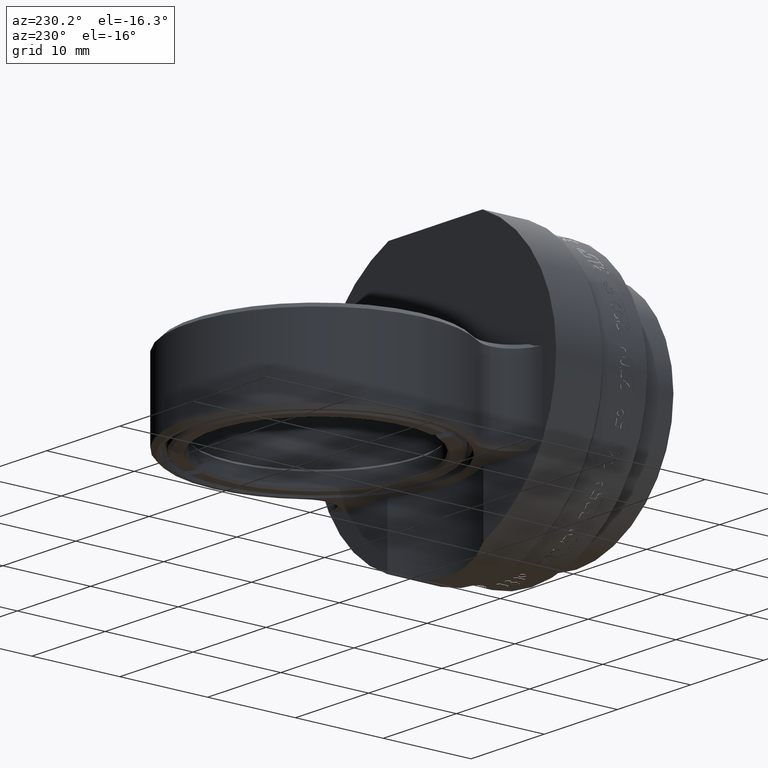
[diagram: clean part render]
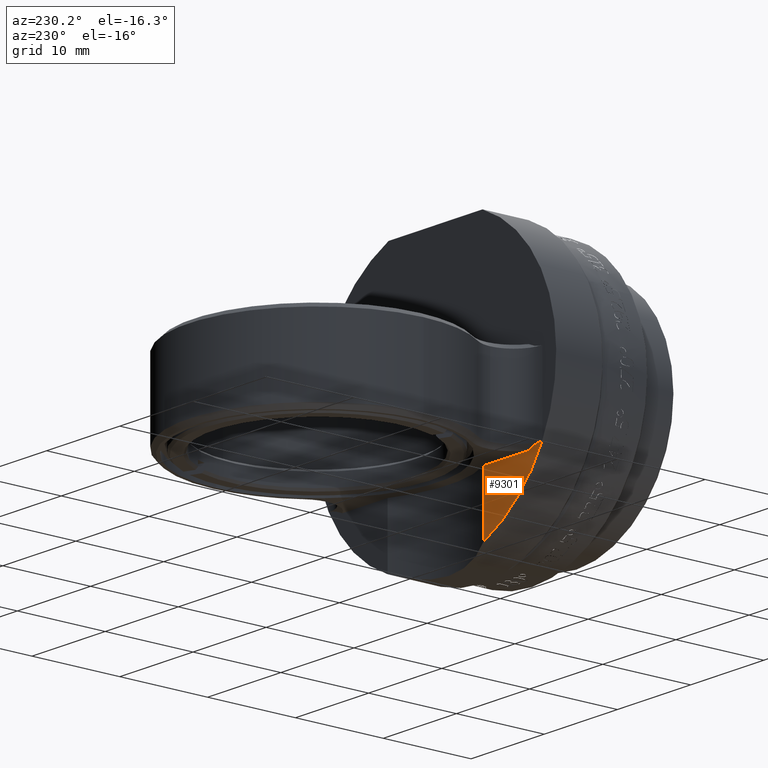
[diagram: same view with one face highlighted and labeled with its STEP entity id]
A machine part, auxiliary view. The second image highlights one B-rep face of the part: STEP entity #9301.
In plain terms, the highlighted planar face has unit normal (0, -1, 0).
Its self-contained STEP definition (entity closure, byte-faithful):
#440 = CARTESIAN_POINT ( 'NONE',  ( -12.73126980611249692, -2.618038152211924707, -8.200000000000144951 ) ) ;
#2100 = DIRECTION ( 'NONE',  ( -0.000000000000000000, -0.000000000000000000, -1.000000000000000000 ) ) ;
#3219 = AXIS2_PLACEMENT_3D ( 'NONE', #10270, #6029, #22214 ) ;
#3376 = VERTEX_POINT ( 'NONE', #43209 ) ;
#5045 = CIRCLE ( 'NONE', #44092, 16.50000000000000355 ) ;
#5485 = DIRECTION ( 'NONE',  ( 0.000000000000000000, 0.000000000000000000, -1.000000000000000000 ) ) ;
#5488 = EDGE_CURVE ( 'NONE', #16209, #3376, #8272, .T. ) ;
#6029 = DIRECTION ( 'NONE',  ( 0.000000000000000000, -1.000000000000000000, 0.000000000000000000 ) ) ;
#6366 = VECTOR ( 'NONE', #2100, 1000.000000000000000 ) ;
#6484 = B_SPLINE_CURVE_WITH_KNOTS ( 'NONE', 3,
 ( #16345, #28842, #37063, #20080, #44770, #440 ),
 .UNSPECIFIED., .F., .F.,
 ( 4, 2, 4 ),
 ( 0.000000000000000000, 0.0009663563281110099622, 0.001932712656222019924 ),
 .UNSPECIFIED. ) ;
#6557 = PLANE ( 'NONE',  #3219 ) ;
#6794 = ORIENTED_EDGE ( 'NONE', *, *, #39068, .T. ) ;
#8014 = DIRECTION ( 'NONE',  ( 1.000000000000000000, 0.000000000000000000, 0.000000000000000000 ) ) ;
#8272 = LINE ( 'NONE', #16741, #9682 ) ;
#8670 = ORIENTED_EDGE ( 'NONE', *, *, #5488, .T. ) ;
#9301 = ADVANCED_FACE ( 'NONE', ( #51430 ), #6557, .F. ) ;
#9682 = VECTOR ( 'NONE', #8014, 1000.000000000000000 ) ;
#10270 = CARTESIAN_POINT ( 'NONE',  ( 16.49999999999990052, -2.618038152211924707, 43.47156316490112005 ) ) ;
#11408 = ORIENTED_EDGE ( 'NONE', *, *, #20642, .T. ) ;
#12322 = VERTEX_POINT ( 'NONE', #37367 ) ;
#16209 = VERTEX_POINT ( 'NONE', #39486 ) ;
#16345 = CARTESIAN_POINT ( 'NONE',  ( -14.59314716581531179, -2.618034533073862136, -7.700003623170911027 ) ) ;
#16741 = CARTESIAN_POINT ( 'NONE',  ( 16.49999999999990052, -2.618038152211924707, -8.200000000000144951 ) ) ;
#20080 = CARTESIAN_POINT ( 'NONE',  ( -13.32513809320245990, -2.618038152211924707, -7.928825750830998942 ) ) ;
#20642 = EDGE_CURVE ( 'NONE', #22705, #12322, #5045, .T. ) ;
#22214 = DIRECTION ( 'NONE',  ( 0.000000000000000000, -0.000000000000000000, -1.000000000000000000 ) ) ;
#22705 = VERTEX_POINT ( 'NONE', #43498 ) ;
#24010 = ORIENTED_EDGE ( 'NONE', *, *, #41740, .T. ) ;
#25177 = EDGE_LOOP ( 'NONE', ( #11408, #24010, #8670, #6794 ) ) ;
#28842 = CARTESIAN_POINT ( 'NONE',  ( -14.26620121528769758, -2.618038152211924707, -7.700698488744787795 ) ) ;
#29908 = CARTESIAN_POINT ( 'NONE',  ( -1.041432260998257894E-13, -2.618038152211924707, -1.461209736246752044E-13 ) ) ;
#34231 = CARTESIAN_POINT ( 'NONE',  ( -6.542476289601785844, -2.618038152211921599, 34.22640687119270808 ) ) ;
#37063 = CARTESIAN_POINT ( 'NONE',  ( -13.94805434049290582, -2.618038152211924263, -7.751394264904431175 ) ) ;
#37367 = CARTESIAN_POINT ( 'NONE',  ( -14.59314716581531179, -2.618034533073862136, -7.700003623170911027 ) ) ;
#39068 = EDGE_CURVE ( 'NONE', #3376, #22705, #39272, .T. ) ;
#39272 = LINE ( 'NONE', #34231, #6366 ) ;
#39486 = CARTESIAN_POINT ( 'NONE',  ( -12.73126980611249692, -2.618038152211924707, -8.200000000000144951 ) ) ;
#41740 = EDGE_CURVE ( 'NONE', #12322, #16209, #6484, .T. ) ;
#43209 = CARTESIAN_POINT ( 'NONE',  ( -6.542476289601778738, -2.618038152211924707, -8.200000000000144951 ) ) ;
#43498 = CARTESIAN_POINT ( 'NONE',  ( -6.542476289601781403, -2.618038152211924263, -15.14747516914962233 ) ) ;
#44092 = AXIS2_PLACEMENT_3D ( 'NONE', #29908, #46111, #5485 ) ;
#44770 = CARTESIAN_POINT ( 'NONE',  ( -13.02267601883264625, -2.618038152211924707, -8.054479585497345440 ) ) ;
#46111 = DIRECTION ( 'NONE',  ( -0.000000000000000000, 1.000000000000000000, -0.000000000000000000 ) ) ;
#51430 = FACE_OUTER_BOUND ( 'NONE', #25177, .T. ) ;